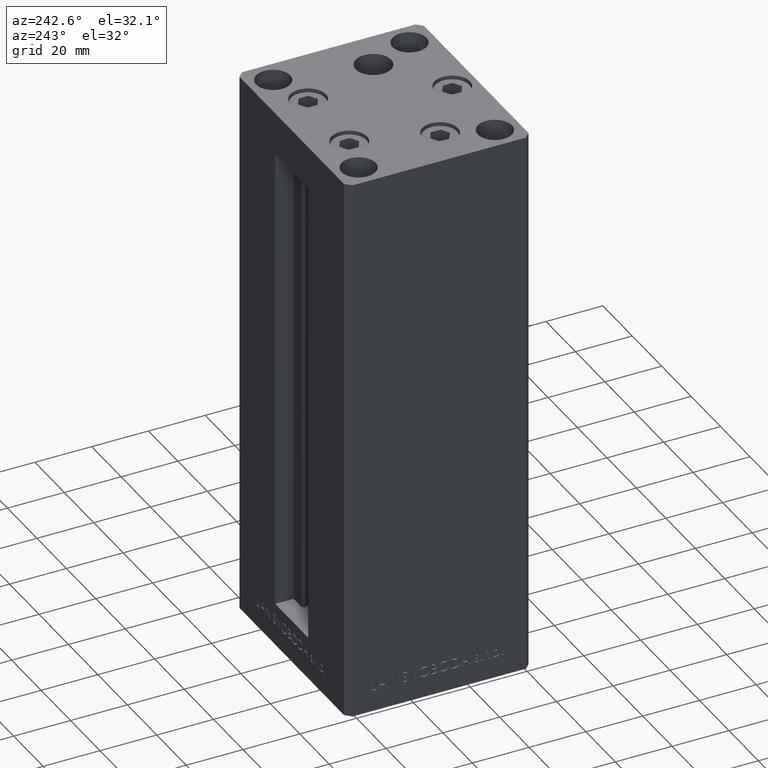
[diagram: clean part render]
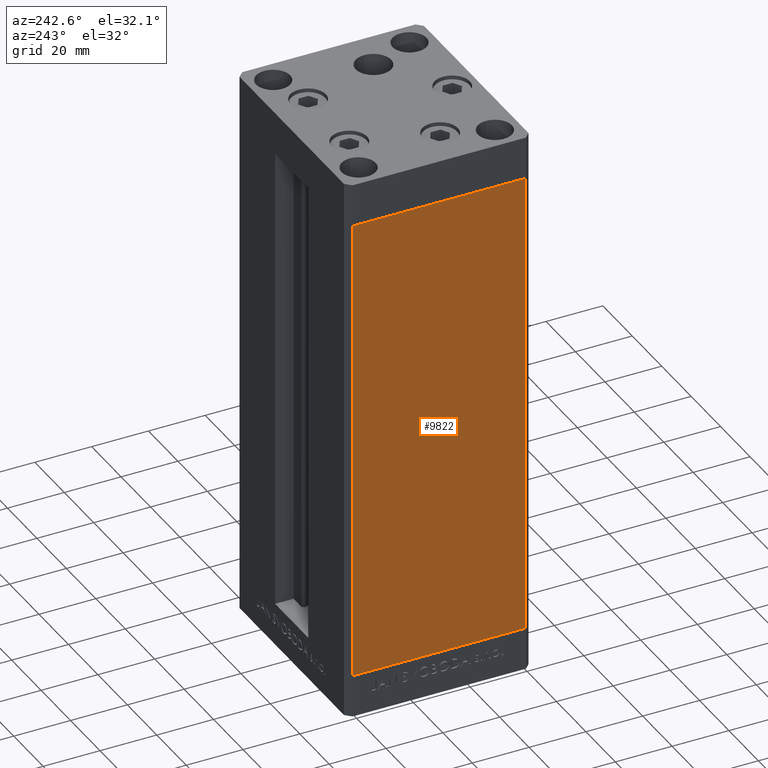
[diagram: same view with one face highlighted and labeled with its STEP entity id]
A machine part, auxiliary view. The second image highlights one B-rep face of the part: STEP entity #9822.
In plain terms, the highlighted planar face has unit normal (1, 0, 0).
Its self-contained STEP definition (entity closure, byte-faithful):
#984 = DIRECTION ( 'NONE',  ( -0.000000000000000000, -0.000000000000000000, -1.000000000000000000 ) ) ;
#3356 = LINE ( 'NONE', #38517, #42514 ) ;
#3728 = DIRECTION ( 'NONE',  ( 1.000000000000000000, 2.275047181608927644E-16, -0.000000000000000000 ) ) ;
#3860 = DIRECTION ( 'NONE',  ( -0.000000000000000000, -0.000000000000000000, -1.000000000000000000 ) ) ;
#5674 = CARTESIAN_POINT ( 'NONE',  ( -37.49999999999999289, -30.50000000000000000, 166.0000000000000000 ) ) ;
#8828 = DIRECTION ( 'NONE',  ( 2.275047181608927644E-16, -1.000000000000000000, 0.000000000000000000 ) ) ;
#9822 = ADVANCED_FACE ( 'NONE', ( #41631 ), #10964, .F. ) ;
#10964 = PLANE ( 'NONE',  #43656 ) ;
#12562 = LINE ( 'NONE', #16525, #47491 ) ;
#13141 = VERTEX_POINT ( 'NONE', #5674 ) ;
#13888 = VERTEX_POINT ( 'NONE', #35671 ) ;
#15162 = ORIENTED_EDGE ( 'NONE', *, *, #39444, .F. ) ;
#15830 = CARTESIAN_POINT ( 'NONE',  ( -37.50000000000000711, 30.50000000000000000, 166.0000000000000000 ) ) ;
#16525 = CARTESIAN_POINT ( 'NONE',  ( -37.50000000000000711, 30.50000000000000000, 0.000000000000000000 ) ) ;
#18931 = DIRECTION ( 'NONE',  ( -2.275047181608927644E-16, 1.000000000000000000, 0.000000000000000000 ) ) ;
#19332 = LINE ( 'NONE', #15830, #47323 ) ;
#22938 = CARTESIAN_POINT ( 'NONE',  ( -37.50000000000000711, 30.50000000000000000, 166.0000000000000000 ) ) ;
#23553 = DIRECTION ( 'NONE',  ( 2.275047181608927644E-16, -1.000000000000000000, 0.000000000000000000 ) ) ;
#25213 = CARTESIAN_POINT ( 'NONE',  ( -37.50000000000000711, 30.50000000000000000, 166.0000000000000000 ) ) ;
#28754 = ORIENTED_EDGE ( 'NONE', *, *, #33710, .T. ) ;
#33710 = EDGE_CURVE ( 'NONE', #47960, #13888, #42377, .T. ) ;
#35671 = CARTESIAN_POINT ( 'NONE',  ( -37.50000000000000711, 30.50000000000000000, 0.000000000000000000 ) ) ;
#36354 = EDGE_LOOP ( 'NONE', ( #39059, #39119, #15162, #28754 ) ) ;
#37305 = VERTEX_POINT ( 'NONE', #44983 ) ;
#38231 = EDGE_CURVE ( 'NONE', #13141, #37305, #3356, .T. ) ;
#38517 = CARTESIAN_POINT ( 'NONE',  ( -37.49999999999999289, -30.50000000000000000, 166.0000000000000000 ) ) ;
#39059 = ORIENTED_EDGE ( 'NONE', *, *, #49086, .T. ) ;
#39119 = ORIENTED_EDGE ( 'NONE', *, *, #38231, .F. ) ;
#39142 = VECTOR ( 'NONE', #984, 1000.000000000000000 ) ;
#39444 = EDGE_CURVE ( 'NONE', #47960, #13141, #19332, .T. ) ;
#41631 = FACE_OUTER_BOUND ( 'NONE', #36354, .T. ) ;
#41881 = CARTESIAN_POINT ( 'NONE',  ( -37.50000000000000711, 30.50000000000000000, 166.0000000000000000 ) ) ;
#42377 = LINE ( 'NONE', #22938, #39142 ) ;
#42514 = VECTOR ( 'NONE', #3860, 1000.000000000000000 ) ;
#43656 = AXIS2_PLACEMENT_3D ( 'NONE', #41881, #3728, #18931 ) ;
#44983 = CARTESIAN_POINT ( 'NONE',  ( -37.49999999999999289, -30.50000000000000000, 0.000000000000000000 ) ) ;
#47323 = VECTOR ( 'NONE', #23553, 1000.000000000000000 ) ;
#47491 = VECTOR ( 'NONE', #8828, 1000.000000000000000 ) ;
#47960 = VERTEX_POINT ( 'NONE', #25213 ) ;
#49086 = EDGE_CURVE ( 'NONE', #13888, #37305, #12562, .T. ) ;